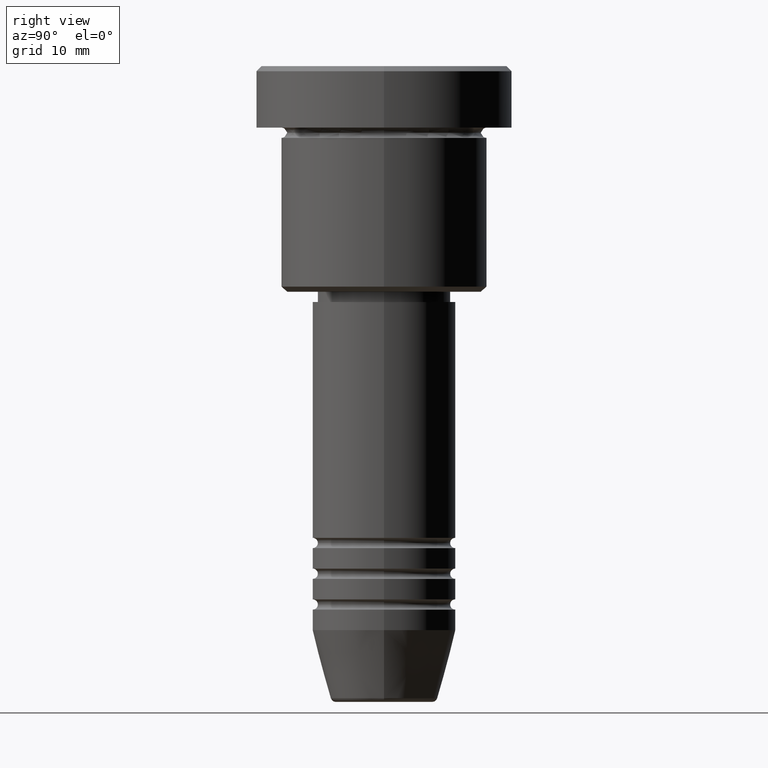
[diagram: clean part render]
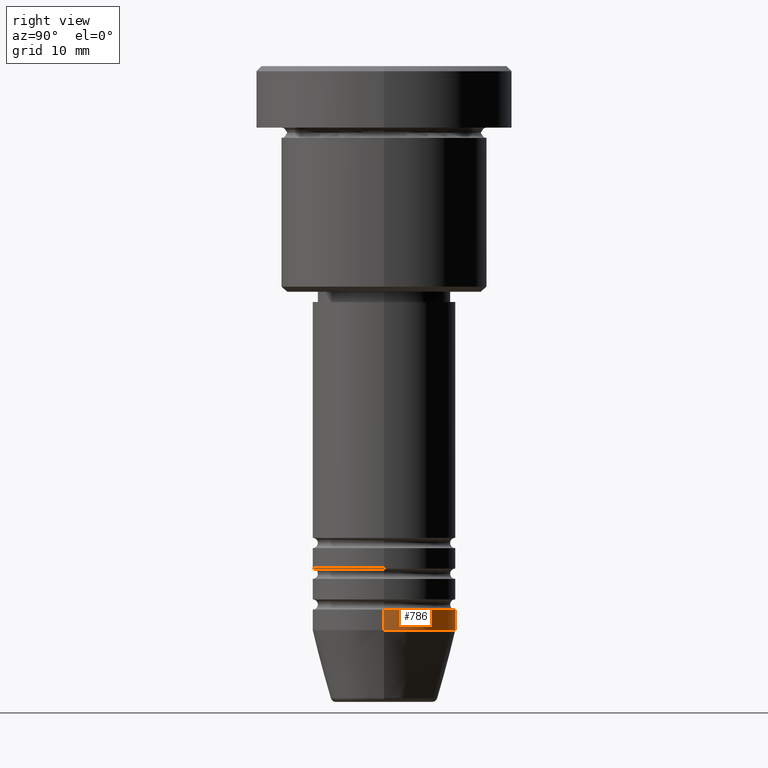
[diagram: same view with one face highlighted and labeled with its STEP entity id]
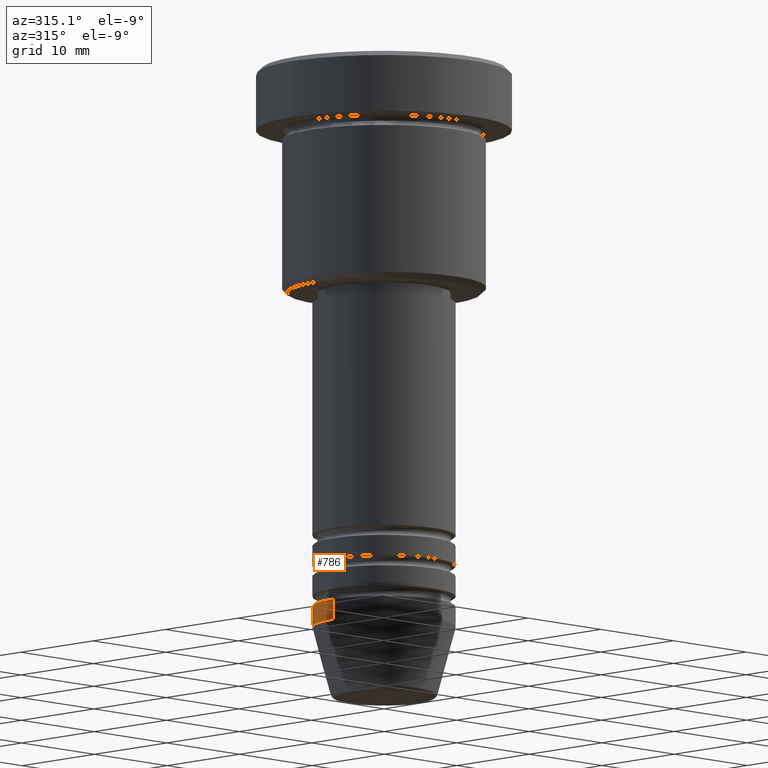
[diagram: same view with one face highlighted and labeled with its STEP entity id]
A machine part, right view. The second image highlights one B-rep face of the part: STEP entity #786.
A second angle (auxiliary view) of the same face is appended — the face is thin or edge-on in the first view.
In plain terms, the highlighted cylindrical surface (partial cylindrical patch) has radius 7 mm, axis along (-0, -0, 1).
Its self-contained STEP definition (entity closure, byte-faithful):
#57 = DIRECTION ( 'NONE',  ( -0.000000000000000000, -0.000000000000000000, 1.000000000000000000 ) ) ;
#62 = VERTEX_POINT ( 'NONE', #523 ) ;
#74 = EDGE_CURVE ( 'NONE', #638, #604, #893, .T. ) ;
#84 = EDGE_CURVE ( 'NONE', #425, #62, #741, .T. ) ;
#88 = DIRECTION ( 'NONE',  ( -0.000000000000000000, -0.000000000000000000, 1.000000000000000000 ) ) ;
#145 = DIRECTION ( 'NONE',  ( -0.000000000000000000, -0.000000000000000000, 1.000000000000000000 ) ) ;
#207 = EDGE_CURVE ( 'NONE', #425, #638, #1084, .T. ) ;
#249 = CARTESIAN_POINT ( 'NONE',  ( 0.000000000000000000, 0.000000000000000000, -53.00000000000000000 ) ) ;
#278 = FACE_OUTER_BOUND ( 'NONE', #777, .T. ) ;
#290 = CARTESIAN_POINT ( 'NONE',  ( 0.000000000000000000, 0.000000000000000000, 0.000000000000000000 ) ) ;
#380 = CYLINDRICAL_SURFACE ( 'NONE', #654, 7.000000000000000000 ) ;
#425 = VERTEX_POINT ( 'NONE', #708 ) ;
#523 = CARTESIAN_POINT ( 'NONE',  ( -7.000000000000000000, 8.572527594031473190E-16, -55.00000000000000000 ) ) ;
#524 = ORIENTED_EDGE ( 'NONE', *, *, #768, .T. ) ;
#571 = CARTESIAN_POINT ( 'NONE',  ( -7.000000000000000000, 8.572527594031473190E-16, -53.00000000000000000 ) ) ;
#592 = AXIS2_PLACEMENT_3D ( 'NONE', #249, #57, #883 ) ;
#604 = VERTEX_POINT ( 'NONE', #571 ) ;
#608 = DIRECTION ( 'NONE',  ( 1.000000000000000000, 0.000000000000000000, 0.000000000000000000 ) ) ;
#634 = VECTOR ( 'NONE', #88, 1000.000000000000000 ) ;
#638 = VERTEX_POINT ( 'NONE', #1122 ) ;
#646 = DIRECTION ( 'NONE',  ( -0.000000000000000000, -0.000000000000000000, 1.000000000000000000 ) ) ;
#654 = AXIS2_PLACEMENT_3D ( 'NONE', #290, #737, #1100 ) ;
#708 = CARTESIAN_POINT ( 'NONE',  ( 7.000000000000000000, 0.000000000000000000, -55.00000000000000000 ) ) ;
#737 = DIRECTION ( 'NONE',  ( -0.000000000000000000, -0.000000000000000000, 1.000000000000000000 ) ) ;
#741 = CIRCLE ( 'NONE', #995, 7.000000000000000000 ) ;
#768 = EDGE_CURVE ( 'NONE', #62, #604, #811, .T. ) ;
#777 = EDGE_LOOP ( 'NONE', ( #830, #524, #1093, #792 ) ) ;
#786 = ADVANCED_FACE ( 'NONE', ( #278 ), #380, .T. ) ;
#792 = ORIENTED_EDGE ( 'NONE', *, *, #207, .F. ) ;
#811 = LINE ( 'NONE', #1013, #954 ) ;
#830 = ORIENTED_EDGE ( 'NONE', *, *, #84, .T. ) ;
#883 = DIRECTION ( 'NONE',  ( 1.000000000000000000, 0.000000000000000000, 0.000000000000000000 ) ) ;
#893 = CIRCLE ( 'NONE', #592, 7.000000000000000000 ) ;
#898 = CARTESIAN_POINT ( 'NONE',  ( 7.000000000000000000, 0.000000000000000000, 0.000000000000000000 ) ) ;
#954 = VECTOR ( 'NONE', #646, 1000.000000000000000 ) ;
#964 = CARTESIAN_POINT ( 'NONE',  ( 0.000000000000000000, 0.000000000000000000, -55.00000000000000000 ) ) ;
#995 = AXIS2_PLACEMENT_3D ( 'NONE', #964, #145, #608 ) ;
#1013 = CARTESIAN_POINT ( 'NONE',  ( -7.000000000000000000, 8.572527594031473190E-16, 0.000000000000000000 ) ) ;
#1084 = LINE ( 'NONE', #898, #634 ) ;
#1093 = ORIENTED_EDGE ( 'NONE', *, *, #74, .F. ) ;
#1100 = DIRECTION ( 'NONE',  ( 1.000000000000000000, 0.000000000000000000, 0.000000000000000000 ) ) ;
#1122 = CARTESIAN_POINT ( 'NONE',  ( 7.000000000000000000, 0.000000000000000000, -53.00000000000000000 ) ) ;